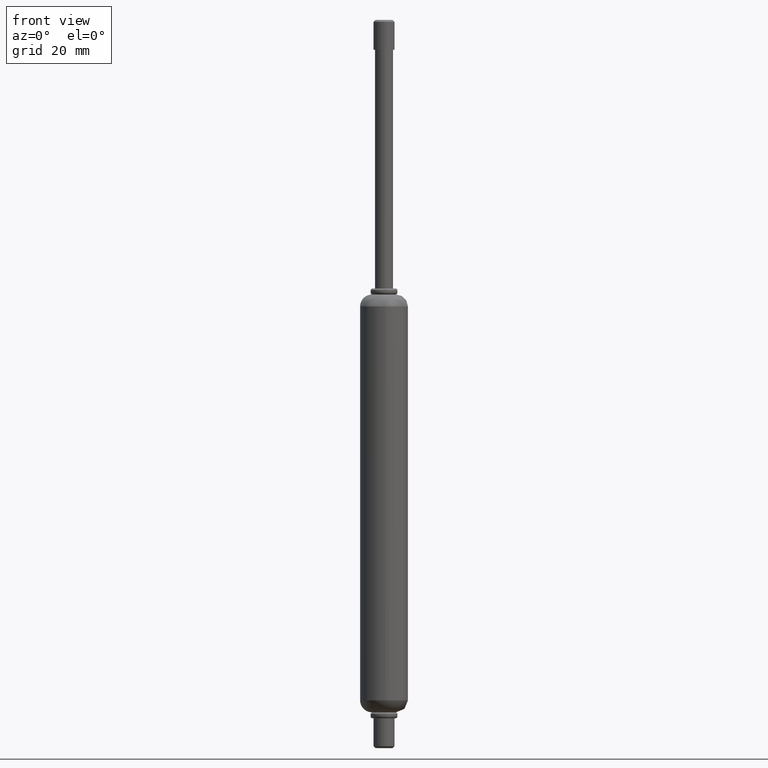
[diagram: clean part render]
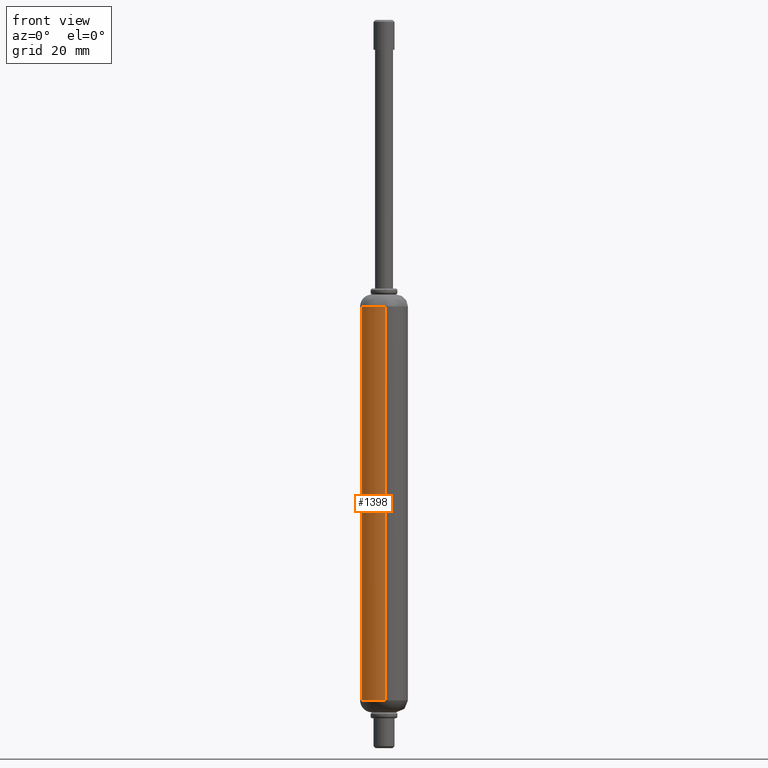
[diagram: same view with one face highlighted and labeled with its STEP entity id]
A machine part, front view. The second image highlights one B-rep face of the part: STEP entity #1398.
In plain terms, the highlighted face is a freeform B-spline surface patch.
Its self-contained STEP definition (entity closure, byte-faithful):
#1209=CARTESIAN_POINT('',(-3.744574315069695,-1.406471897662997,-1.999999999999998));
#1210=VERTEX_POINT('',#1209);
#1258=CARTESIAN_POINT('',(0.244194158214591,-3.992539193682497,-1.999999999999998));
#1259=VERTEX_POINT('',#1258);
#1273=CARTESIAN_POINT('',(0.244194158214591,-3.992539193682474,-68.0));
#1274=VERTEX_POINT('',#1273);
#1275=CARTESIAN_POINT('',(0.244194158214591,-3.992539193682497,-1.999999999999998));
#1276=CARTESIAN_POINT('',(0.244194158214591,-3.992539193682474,-68.0));
#1277=QUASI_UNIFORM_CURVE('',1,(#1275,#1276),.UNSPECIFIED.,.F.,.U.);
#1278=EDGE_CURVE('',#1259,#1274,#1277,.T.);
#1327=CARTESIAN_POINT('',(-3.744574315069681,-1.406471897662991,-68.0));
#1328=VERTEX_POINT('',#1327);
#1342=CARTESIAN_POINT('',(-3.744574315069695,-1.406471897662997,-1.999999999999998));
#1343=CARTESIAN_POINT('',(-3.744574315069681,-1.406471897662991,-68.0));
#1344=QUASI_UNIFORM_CURVE('',1,(#1342,#1343),.UNSPECIFIED.,.F.,.U.);
#1345=EDGE_CURVE('',#1210,#1328,#1344,.T.);
#1350=CARTESIAN_POINT('',(0.244194158139594,-3.992539193687073,-0.349999999999991));
#1351=CARTESIAN_POINT('',(-2.705478327211804,-4.172948891476955,-0.349999999999991));
#1352=CARTESIAN_POINT('',(-3.744574315106067,-1.406471897566148,-0.349999999999991));
#1353=CARTESIAN_POINT('',(0.244194158139594,-3.992539193687073,-69.691250000000281));
#1354=CARTESIAN_POINT('',(-2.705478327211804,-4.172948891476955,-69.691250000000281));
#1355=CARTESIAN_POINT('',(-3.744574315106067,-1.406471897566148,-69.691250000000281));
#1363=(BOUNDED_SURFACE()B_SPLINE_SURFACE(2,1,((#1350,#1353),(#1351,#1354),(#1352,#1355)),.UNSPECIFIED.,.F.,.F.,.U.)B_SPLINE_SURFACE_WITH_KNOTS((3,3),(2,2),(0.0,5.265794895546066),(0.0,69.341250000000286),.UNSPECIFIED.)GEOMETRIC_REPRESENTATION_ITEM()RATIONAL_B_SPLINE_SURFACE(((1.0,1.0),(0.765685424949238,0.765685424949238),(0.906274169979695,0.906274169979695)))REPRESENTATION_ITEM('')SURFACE());
#1364=CARTESIAN_POINT('',(0.244194158214591,-3.992539193682497,-1.999999999999998));
#1365=CARTESIAN_POINT('',(0.122211053269742,-3.999999999999626,-2.000000000000000));
#1366=CARTESIAN_POINT('',(1.920686E-013,-3.999999999999625,-2.0));
#1367=CARTESIAN_POINT('',(-2.770438382624152,-3.999999999999625,-2.0));
#1368=CARTESIAN_POINT('',(-3.744574315069695,-1.406471897662997,-1.999999999999998));
#1376=(BOUNDED_CURVE()B_SPLINE_CURVE(2,(#1364,#1365,#1366,#1367,#1368),.UNSPECIFIED.,.F.,.U.)B_SPLINE_CURVE_WITH_KNOTS((3,2,3),(0.739332962235486,0.750000000000000,0.940284170890739),.UNSPECIFIED.)CURVE()GEOMETRIC_REPRESENTATION_ITEM()RATIONAL_B_SPLINE_CURVE((0.976072041659309,0.987502787895787,1.0,0.777068226794249,0.893499554625768))REPRESENTATION_ITEM(''));
#1377=EDGE_CURVE('',#1259,#1210,#1376,.T.);
#1378=ORIENTED_EDGE('',*,*,#1377,.T.);
#1379=ORIENTED_EDGE('',*,*,#1345,.T.);
#1380=CARTESIAN_POINT('',(0.244194158214591,-3.992539193682474,-68.0));
#1381=CARTESIAN_POINT('',(0.122211053269742,-3.999999999999581,-68.0));
#1382=CARTESIAN_POINT('',(1.920686E-013,-3.999999999999580,-68.0));
#1383=CARTESIAN_POINT('',(-2.770438382624118,-3.999999999999581,-68.0));
#1384=CARTESIAN_POINT('',(-3.744574315069681,-1.406471897662991,-68.0));
#1392=(BOUNDED_CURVE()B_SPLINE_CURVE(2,(#1380,#1381,#1382,#1383,#1384),.UNSPECIFIED.,.F.,.U.)B_SPLINE_CURVE_WITH_KNOTS((3,2,3),(0.739332962235486,0.750000000000000,0.940284170890739),.UNSPECIFIED.)CURVE()GEOMETRIC_REPRESENTATION_ITEM()RATIONAL_B_SPLINE_CURVE((0.976072041659309,0.987502787895787,1.0,0.777068226794249,0.893499554625767))REPRESENTATION_ITEM(''));
#1393=EDGE_CURVE('',#1274,#1328,#1392,.T.);
#1394=ORIENTED_EDGE('',*,*,#1393,.F.);
#1395=ORIENTED_EDGE('',*,*,#1278,.F.);
#1396=EDGE_LOOP('',(#1378,#1379,#1394,#1395));
#1397=FACE_OUTER_BOUND('',#1396,.T.);
#1398=ADVANCED_FACE('',(#1397),#1363,.T.);